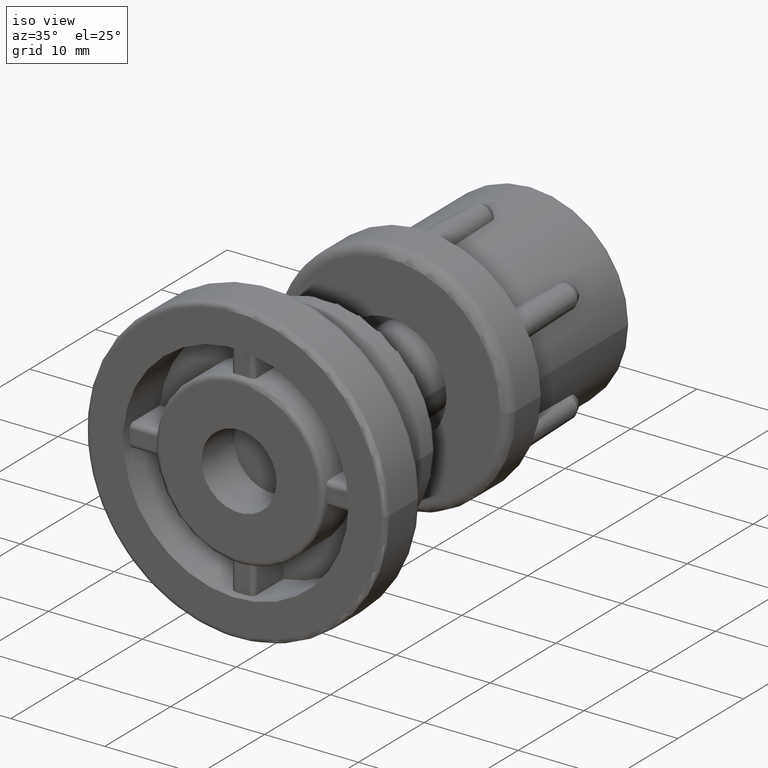
[diagram: clean part render]
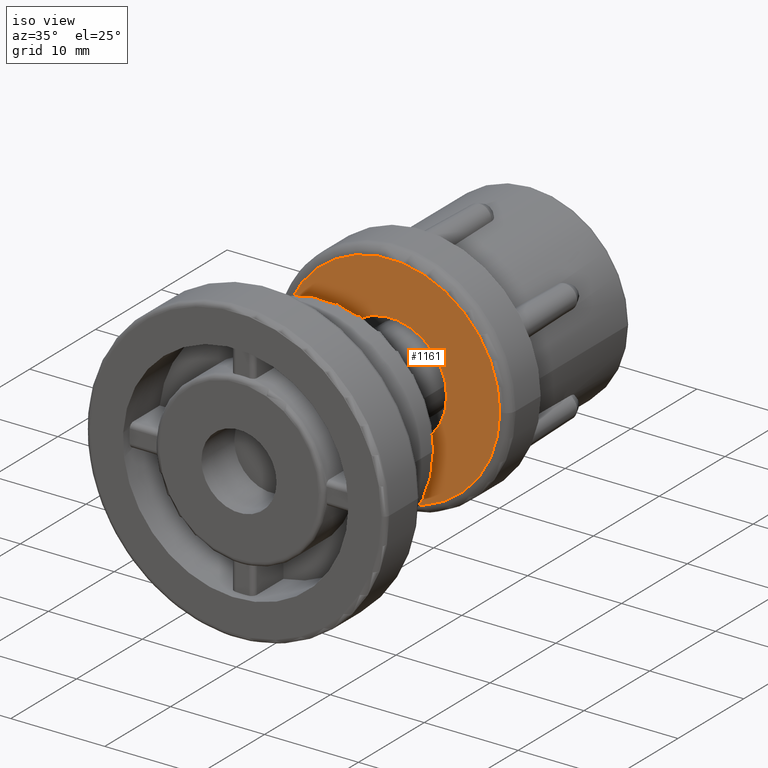
[diagram: same view with one face highlighted and labeled with its STEP entity id]
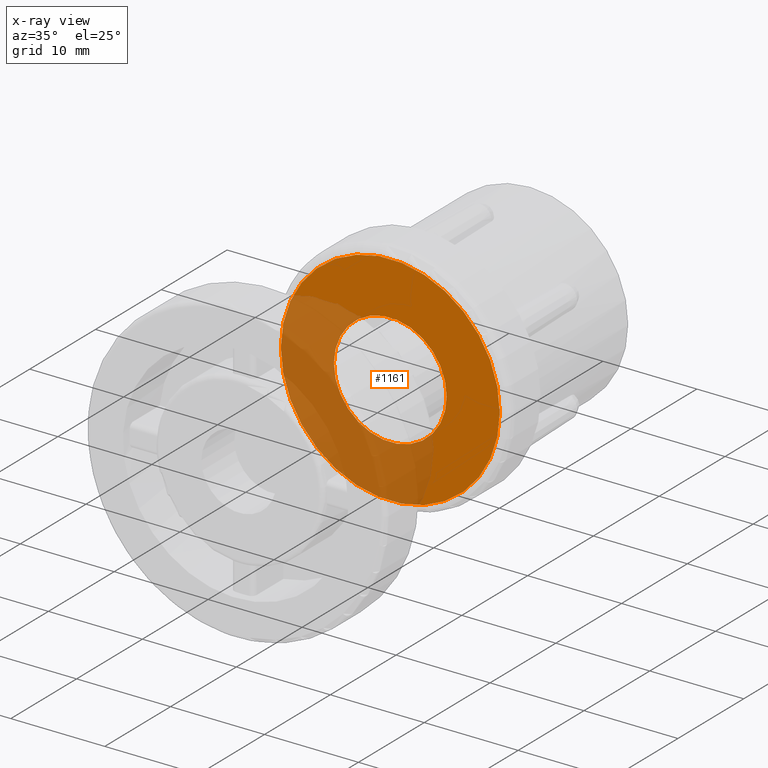
[diagram: x-ray of the same camera — body ghosted, the highlighted face saturated]
A machine part, iso view. The second image highlights one B-rep face of the part: STEP entity #1161.
The next image is the same camera in x-ray: the body ghosted, the highlighted face saturated — about 44% of this face is hidden behind the body in this view.
In plain terms, the highlighted planar face has unit normal (0, -1, 0).
Its self-contained STEP definition (entity closure, byte-faithful):
#61=FACE_BOUND('',#341,.T.);
#122=CIRCLE('',#1294,11.65);
#124=CIRCLE('',#1298,6.);
#179=PLANE('',#1297);
#241=FACE_OUTER_BOUND('',#340,.T.);
#340=EDGE_LOOP('',(#997));
#341=EDGE_LOOP('',(#998));
#600=VERTEX_POINT('',#2298);
#602=VERTEX_POINT('',#2304);
#741=EDGE_CURVE('',#600,#600,#122,.T.);
#743=EDGE_CURVE('',#602,#602,#124,.T.);
#997=ORIENTED_EDGE('',*,*,#741,.F.);
#998=ORIENTED_EDGE('',*,*,#743,.T.);
#1161=ADVANCED_FACE('',(#241,#61),#179,.T.);
#1294=AXIS2_PLACEMENT_3D('',#2299,#1594,#1595);
#1297=AXIS2_PLACEMENT_3D('',#2303,#1600,#1601);
#1298=AXIS2_PLACEMENT_3D('',#2305,#1602,#1603);
#1594=DIRECTION('center_axis',(-7.00321971967498E-17,1.,0.));
#1595=DIRECTION('ref_axis',(-1.,-7.00321971967498E-17,1.22464679914735E-16));
#1600=DIRECTION('center_axis',(7.00321971967498E-17,-1.,0.));
#1601=DIRECTION('ref_axis',(0.,0.,-1.));
#1602=DIRECTION('center_axis',(-7.00321971967498E-17,1.,0.));
#1603=DIRECTION('ref_axis',(1.,0.,0.));
#2298=CARTESIAN_POINT('',(11.65,8.15875097342135E-16,-2.85342704201333E-15));
#2299=CARTESIAN_POINT('Origin',(3.36154546544399E-16,0.,0.));
#2303=CARTESIAN_POINT('Origin',(0.,0.,0.));
#2304=CARTESIAN_POINT('',(6.,0.,0.));
#2305=CARTESIAN_POINT('Origin',(-2.22044604925031E-15,0.,0.));